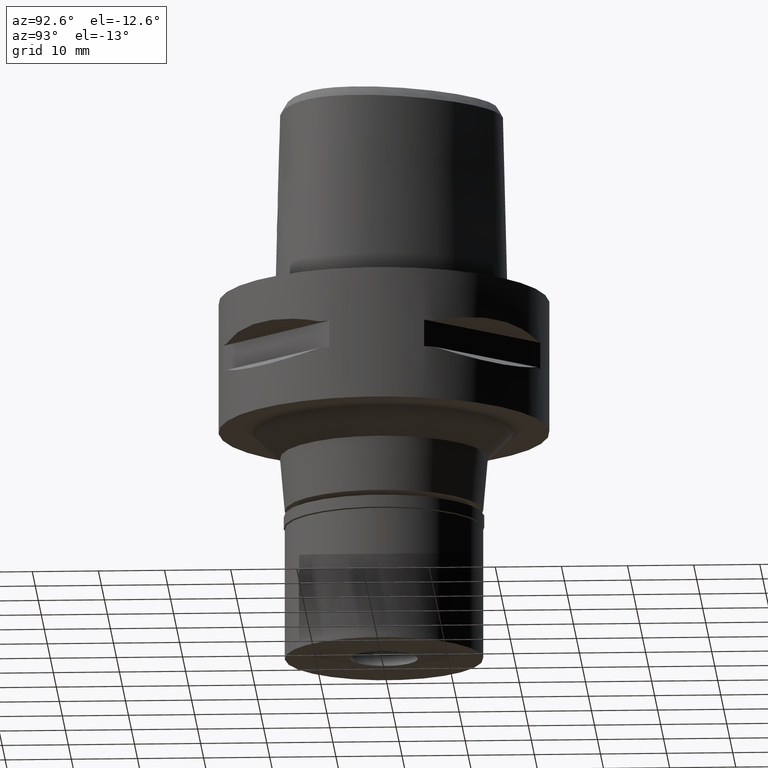
[diagram: clean part render]
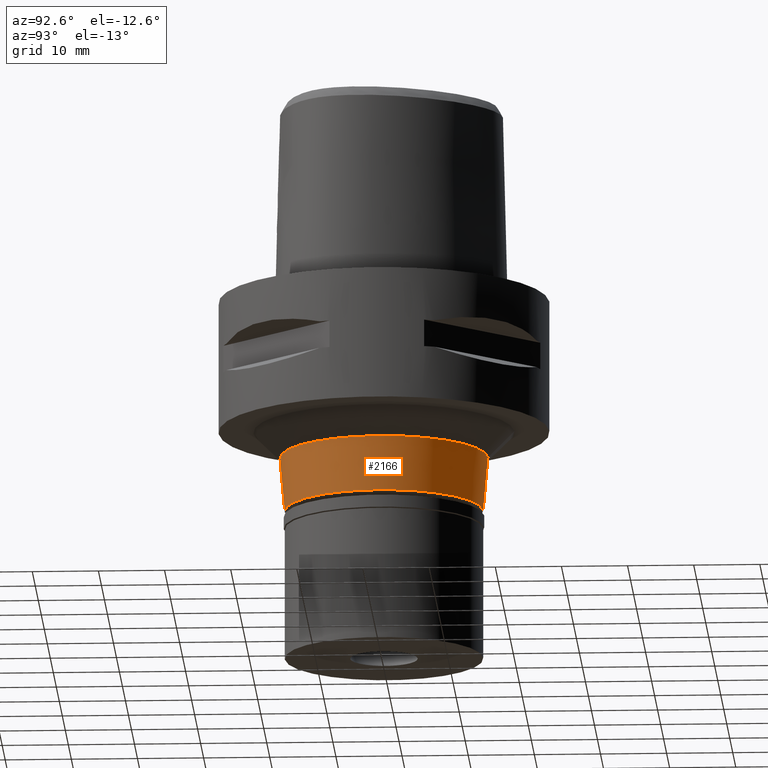
[diagram: same view with one face highlighted and labeled with its STEP entity id]
A machine part, auxiliary view. The second image highlights one B-rep face of the part: STEP entity #2166.
In plain terms, the highlighted conical surface has half-angle 5 deg.
Its self-contained STEP definition (entity closure, byte-faithful):
#47 = AXIS2_PLACEMENT_3D ( 'NONE', #2305, #3732, #190 ) ;
#190 = DIRECTION ( 'NONE',  ( 0.0000000000000000000, 1.000000000000000000, 0.0000000000000000000 ) ) ;
#204 = DIRECTION ( 'NONE',  ( 0.0000000000000000000, -1.000000000000000000, 0.0000000000000000000 ) ) ;
#351 = ORIENTED_EDGE ( 'NONE', *, *, #1594, .T. ) ;
#387 = VERTEX_POINT ( 'NONE', #712 ) ;
#548 = DIRECTION ( 'NONE',  ( 0.0000000000000000000, 0.08715574274742697580, -0.9961946980917657513 ) ) ;
#672 = EDGE_CURVE ( 'NONE', #387, #3653, #2715, .T. ) ;
#712 = CARTESIAN_POINT ( 'NONE',  ( 0.0000000000000000000, -15.71740704091000040, -24.00000000000000000 ) ) ;
#730 = VERTEX_POINT ( 'NONE', #1959 ) ;
#856 = FACE_OUTER_BOUND ( 'NONE', #1144, .T. ) ;
#984 = CIRCLE ( 'NONE', #3997, 15.71740704091999952 ) ;
#1144 = EDGE_LOOP ( 'NONE', ( #3632, #2043, #351, #3432 ) ) ;
#1368 = VECTOR ( 'NONE', #4028, 1000.000000000000114 ) ;
#1397 = VERTEX_POINT ( 'NONE', #4321 ) ;
#1472 = CONICAL_SURFACE ( 'NONE', #47, 15.35870352045999887, 0.08726646259969973729 ) ;
#1474 = CIRCLE ( 'NONE', #2076, 15.00000000000000000 ) ;
#1594 = EDGE_CURVE ( 'NONE', #3653, #730, #1474, .T. ) ;
#1596 = CARTESIAN_POINT ( 'NONE',  ( 0.0000000000000000000, 0.0000000000000000000, -24.00000000000000000 ) ) ;
#1601 = CARTESIAN_POINT ( 'NONE',  ( 0.0000000000000000000, -15.71740704091000040, -24.00000000000000000 ) ) ;
#1612 = CARTESIAN_POINT ( 'NONE',  ( 0.0000000000000000000, 0.0000000000000000000, -32.20000000000000284 ) ) ;
#1783 = VECTOR ( 'NONE', #548, 1000.000000000000114 ) ;
#1886 = DIRECTION ( 'NONE',  ( 0.0000000000000000000, -1.000000000000000000, 0.0000000000000000000 ) ) ;
#1889 = CARTESIAN_POINT ( 'NONE',  ( 0.0000000000000000000, -15.00000000000000000, -32.20000000000000284 ) ) ;
#1959 = CARTESIAN_POINT ( 'NONE',  ( 0.0000000000000000000, 15.00000000000000000, -32.20000000000000284 ) ) ;
#2043 = ORIENTED_EDGE ( 'NONE', *, *, #672, .T. ) ;
#2076 = AXIS2_PLACEMENT_3D ( 'NONE', #1612, #4130, #204 ) ;
#2166 = ADVANCED_FACE ( 'NONE', ( #856 ), #1472, .T. ) ;
#2255 = DIRECTION ( 'NONE',  ( 0.0000000000000000000, 0.0000000000000000000, 1.000000000000000000 ) ) ;
#2305 = CARTESIAN_POINT ( 'NONE',  ( 0.0000000000000000000, 0.0000000000000000000, -28.10000000000000142 ) ) ;
#2670 = CARTESIAN_POINT ( 'NONE',  ( 0.0000000000000000000, 15.71740704091000040, -24.00000000000000000 ) ) ;
#2715 = LINE ( 'NONE', #1601, #1783 ) ;
#2843 = EDGE_CURVE ( 'NONE', #387, #1397, #984, .T. ) ;
#3432 = ORIENTED_EDGE ( 'NONE', *, *, #4325, .F. ) ;
#3632 = ORIENTED_EDGE ( 'NONE', *, *, #2843, .F. ) ;
#3653 = VERTEX_POINT ( 'NONE', #1889 ) ;
#3732 = DIRECTION ( 'NONE',  ( 0.0000000000000000000, 0.0000000000000000000, 1.000000000000000000 ) ) ;
#3997 = AXIS2_PLACEMENT_3D ( 'NONE', #1596, #2255, #1886 ) ;
#4028 = DIRECTION ( 'NONE',  ( 0.0000000000000000000, -0.08715574274742697580, -0.9961946980917657513 ) ) ;
#4079 = LINE ( 'NONE', #2670, #1368 ) ;
#4130 = DIRECTION ( 'NONE',  ( 0.0000000000000000000, 0.0000000000000000000, 1.000000000000000000 ) ) ;
#4321 = CARTESIAN_POINT ( 'NONE',  ( 0.0000000000000000000, 15.71740704091000040, -24.00000000000000000 ) ) ;
#4325 = EDGE_CURVE ( 'NONE', #1397, #730, #4079, .T. ) ;